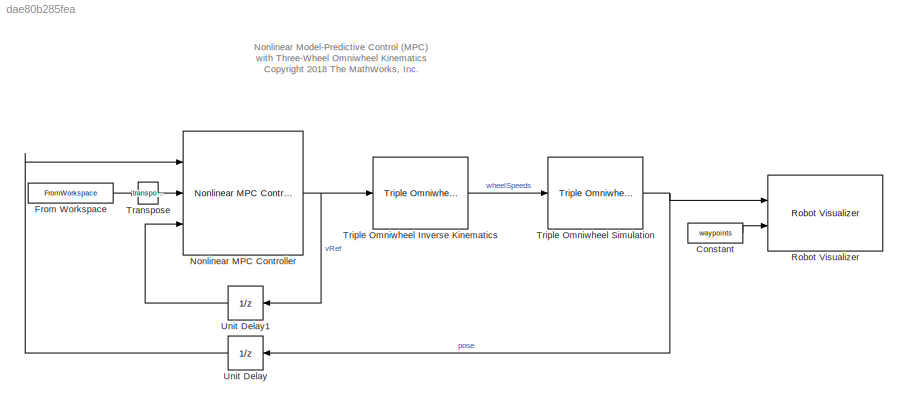
MODEL slx_dae80b285fea
KIND model
CONFIG AbsTol = auto
CONFIG EnableMultiTasking = on
CONFIG FixedStep = 0.01
CONFIG MaxStep = auto
CONFIG MinStep = auto
CONFIG PreLoadFcn = mrsOmniwheelMPCInit
CONFIG RelTol = 1e-3
CONFIG SampleTimeConstraint = Unconstrained
CONFIG Solver = VariableStepAuto
CONFIG SolverName = VariableStepAuto
CONFIG StartTime = 0.0
CONFIG StopTime = 15
BLOCK [Constant] Constant
  Value = waypoints
BLOCK [FromWorkspace] From Workspace
  OutputAfterFinalValue = Holding final value
  SampleTime = sampleTime
  VariableName = [times waypoints]
  ZeroCross = on
BLOCK [Reference] Nonlinear MPC Controller  REF=mpclib/Nonlinear MPC Controller  (lib defined in mdl_ae329e0e0455)
  Ports = [3, 1]
  SCDEnableBlockLinearizationSpecification = on
  SourceBlock = mpclib/Nonlinear MPC Controller
  SourceProductBaseCode = MP
  SourceProductName = Model Predictive Control Toolbox
  SourceType = NonlinearMPC
BLOCK [Reference] Robot Visualizer  REF=mobileRoboticsLib/Environments/Robot Visualizer
  Ports = [2]
  Priority = 99
  SourceBlock = mobileRoboticsLib/Environments/Robot Visualizer
  SourceProductName = Mobile Robotics Simulation Toolbox
  SourceType = Visualizer2D
BLOCK [Math] Transpose
  Operator = transpose
  Ports = [1, 1]
BLOCK [Reference] Triple Omniwheel Inverse Kinematics   REF=mobileRoboticsLib/Kinematic Models/Triple Omniwheel/Triple Omniwheel
Inverse Kinematics 
  Ports = [1, 1]
  SourceBlock = mobileRoboticsLib/Kinematic Models/Triple Omniwheel/Triple Omniwheel\nInverse Kinematics
  SourceProductName = Mobile Robotics Simulation Toolbox
  SourceType = Triple Omniwheel Inverse Kinematics
BLOCK [Reference] Triple Omniwheel Simulation  REF=mobileRoboticsLib/Kinematic Models/Triple Omniwheel/Triple Omniwheel Simulation
  Ports = [1, 1]
  SourceBlock = mobileRoboticsLib/Kinematic Models/Triple Omniwheel/Triple Omniwheel Simulation
  SourceProductName = Mobile Robotics Simulation Toolbox
  SourceType = Triple Omniwheel Simulation
BLOCK [UnitDelay] Unit Delay
  InputProcessing = Elements as channels (sample based)
  SampleTime = sampleTime
BLOCK [UnitDelay] Unit Delay1
  InputProcessing = Elements as channels (sample based)
  SampleTime = sampleTime
ANNOTATION (root): Nonlinear Model-Predictive Control (MPC) with Three-Wheel Omniwheel Kinematics <copyright redacted>
LINE Constant:1 -> Robot Visualizer:2
LINE From Workspace:1 -> Transpose:1
NET Nonlinear MPC Controller:1 -> Triple Omniwheel Inverse Kinematics :1, Unit Delay1:1
LINE Transpose:1 -> Nonlinear MPC Controller:2
LINE Triple Omniwheel Inverse Kinematics :1 -> Triple Omniwheel Simulation:1
NET Triple Omniwheel Simulation:1 -> Robot Visualizer:1, Unit Delay:1
LINE Unit Delay1:1 -> Nonlinear MPC Controller:3
LINE Unit Delay:1 -> Nonlinear MPC Controller:1
note: NET lines group one-source signal fan-out (src -> all destinations, sorted); 1:1 wires keep LINE
